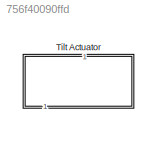
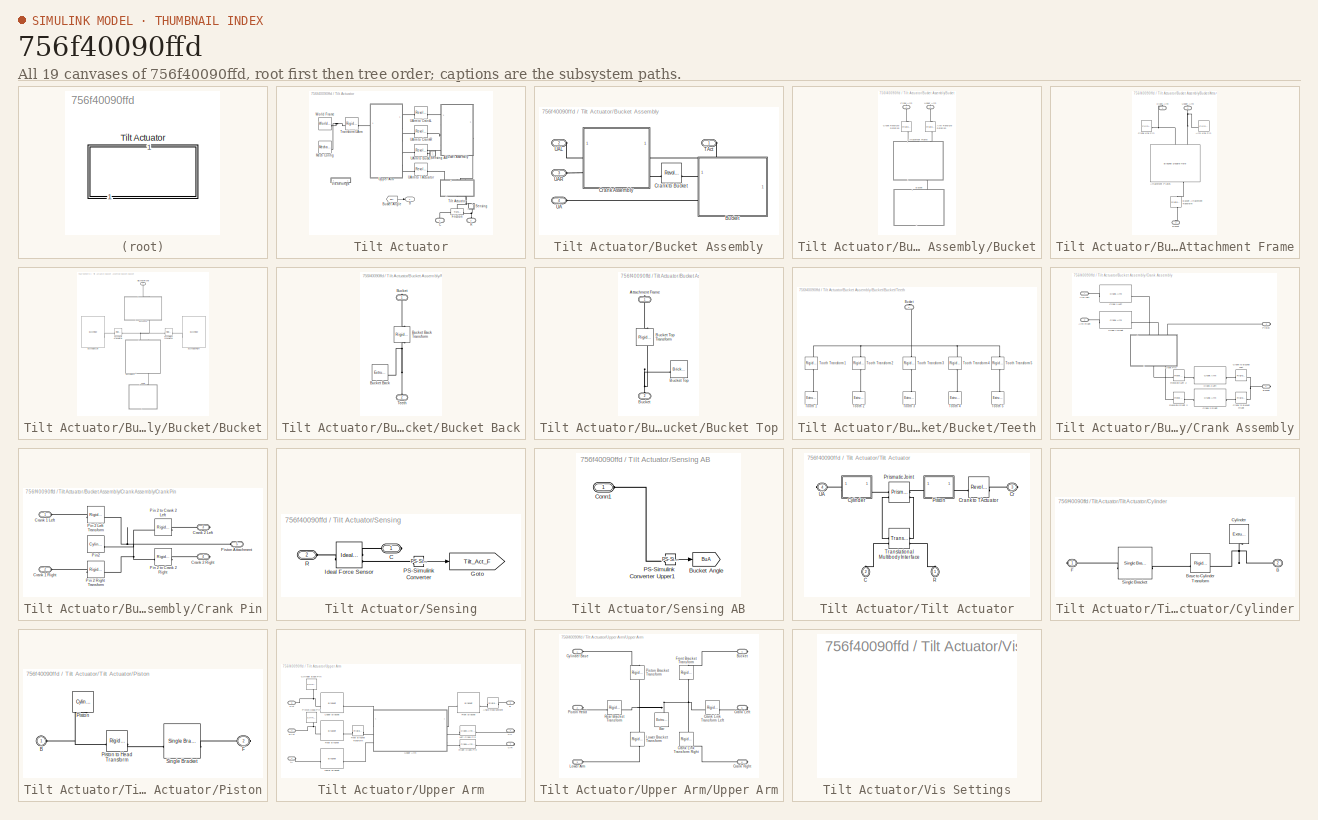
[diagram: thumbnail index - all 19 canvases of the model, root first then tree order]
MODEL slx_756f40090ffd
KIND library
CONFIG EnableMultiTasking = on
CONFIG SolverName = ode45
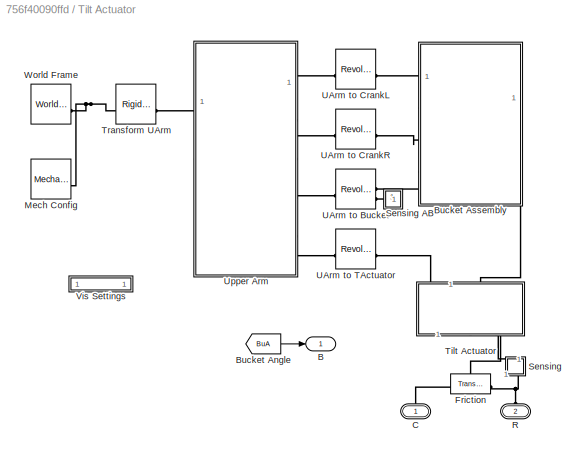
BLOCK [SubSystem] Tilt Actuator
  NameLocation = right
BLOCK [Outport] Tilt Actuator/B
  VectorParamsAs1DForOutWhenUnconnected = off
BLOCK [From] Tilt Actuator/Bucket Angle
  GotoTag = BuA
  TagVisibility = global
BLOCK [SubSystem] Tilt Actuator/Bucket Assembly
BLOCK [SubSystem] Tilt Actuator/Bucket Assembly/Bucket
BLOCK [Reference] Tilt Actuator/Bucket Assembly/Bucket/Arm Revolute Rotation  REF=sm_lib/Frames and
Transforms/Rigid
Transform
  NameLocation = right
  SourceBlock = sm_lib/Frames and\nTransforms/Rigid\nTransform
  SourceType = Rigid\nTransform
BLOCK [SubSystem] Tilt Actuator/Bucket Assembly/Bucket/Attachment Frame
  NameLocation = right
BLOCK [Reference] Tilt Actuator/Bucket Assembly/Bucket/Attachment Frame/Arm Link Pin  REF=sm_lib/Body Elements/Cylindrical Solid
  SourceBlock = sm_lib/Body Elements/Cylindrical Solid
  SourceType = Cylindrical Solid
BLOCK [Reference] Tilt Actuator/Bucket Assembly/Bucket/Attachment Frame/Attachment Plates  REF=Backhoe_Lib/Bracket Double Hole
  LibrarySourceBlock = Backhoe_Lib_converted_converted/Bracket Double Hole
  NameLocation = right
  SourceBlock = Backhoe_Lib/Bracket Double Hole
  SourceType = Bracket Double Hole
BLOCK [PMIOPort] Tilt Actuator/Bucket Assembly/Bucket/Attachment Frame/Bucket
  NameLocation = left
  Port = 3
  Side = Left
BLOCK [Reference] Tilt Actuator/Bucket Assembly/Bucket/Attachment Frame/Bucket Attachment Transform  REF=sm_lib/Frames and
Transforms/Rigid
Transform
  NameLocation = right
  SourceBlock = sm_lib/Frames and\nTransforms/Rigid\nTransform
  SourceType = Rigid\nTransform
BLOCK [PMIOPort] Tilt Actuator/Bucket Assembly/Bucket/Attachment Frame/Crank Arm
  NameLocation = left
  Side = Right
BLOCK [Reference] Tilt Actuator/Bucket Assembly/Bucket/Attachment Frame/Crank Link Pin  REF=sm_lib/Body Elements/Cylindrical Solid
  SourceBlock = sm_lib/Body Elements/Cylindrical Solid
  SourceType = Cylindrical Solid
BLOCK [PMIOPort] Tilt Actuator/Bucket Assembly/Bucket/Attachment Frame/Upper Arm
  NameLocation = right
  Port = 2
  Side = Right
BLOCK [SubSystem] Tilt Actuator/Bucket Assembly/Bucket/Bucket
  NameLocation = right
BLOCK [PMIOPort] Tilt Actuator/Bucket Assembly/Bucket/Bucket/Attachment Frame
  NameLocation = right
  Side = Right
BLOCK [SubSystem] Tilt Actuator/Bucket Assembly/Bucket/Bucket/Bucket Back
  NameLocation = right
BLOCK [PMIOPort] Tilt Actuator/Bucket Assembly/Bucket/Bucket/Bucket Back/Bucket
  NameLocation = right
  Side = Right
BLOCK [Reference] Tilt Actuator/Bucket Assembly/Bucket/Bucket/Bucket Back/Bucket Back  REF=sm_lib/Body Elements/Extruded Solid
  NameLocation = top
  SourceBlock = sm_lib/Body Elements/Extruded Solid
  SourceType = Extruded Solid
BLOCK [Reference] Tilt Actuator/Bucket Assembly/Bucket/Bucket/Bucket Back/Bucket Back Transform  REF=sm_lib/Frames and
Transforms/Rigid
Transform
  NameLocation = left
  SourceBlock = sm_lib/Frames and\nTransforms/Rigid\nTransform
  SourceType = Rigid\nTransform
BLOCK [PMIOPort] Tilt Actuator/Bucket Assembly/Bucket/Bucket/Bucket Back/Teeth
  NameLocation = right
  Port = 2
  Side = Left
BLOCK [Reference] Tilt Actuator/Bucket Assembly/Bucket/Bucket/Bucket Left Transform  REF=sm_lib/Frames and
Transforms/Rigid
Transform
  NameLocation = top
  SourceBlock = sm_lib/Frames and\nTransforms/Rigid\nTransform
  SourceType = Rigid\nTransform
BLOCK [Reference] Tilt Actuator/Bucket Assembly/Bucket/Bucket/Bucket Right Transform  REF=sm_lib/Frames and
Transforms/Rigid
Transform
  NameLocation = top
  SourceBlock = sm_lib/Frames and\nTransforms/Rigid\nTransform
  SourceType = Rigid\nTransform
BLOCK [Reference] Tilt Actuator/Bucket Assembly/Bucket/Bucket/Bucket Side Left  REF=Backhoe_Lib/Bucket Side
  LibrarySourceBlock = Backhoe_Lib_converted_converted/Bucket Side
  SourceBlock = Backhoe_Lib/Bucket Side
  SourceType = Bucket Side
BLOCK [Reference] Tilt Actuator/Bucket Assembly/Bucket/Bucket/Bucket SideRight  REF=Backhoe_Lib/Bucket Side
  LibrarySourceBlock = Backhoe_Lib_converted_converted/Bucket Side
  SourceBlock = Backhoe_Lib/Bucket Side
  SourceType = Bucket Side
BLOCK [SubSystem] Tilt Actuator/Bucket Assembly/Bucket/Bucket/Bucket Top
  NameLocation = right
BLOCK [PMIOPort] Tilt Actuator/Bucket Assembly/Bucket/Bucket/Bucket Top/Attachment Frame
  NameLocation = right
  Side = Right
BLOCK [PMIOPort] Tilt Actuator/Bucket Assembly/Bucket/Bucket/Bucket Top/Bucket
  NameLocation = right
  Port = 2
  Side = Left
BLOCK [Reference] Tilt Actuator/Bucket Assembly/Bucket/Bucket/Bucket Top/Bucket Top  REF=sm_lib/Body Elements/Brick Solid
  NameLocation = top
  SourceBlock = sm_lib/Body Elements/Brick Solid
  SourceType = Brick Solid
BLOCK [Reference] Tilt Actuator/Bucket Assembly/Bucket/Bucket/Bucket Top/Bucket Top Transform  REF=sm_lib/Frames and
Transforms/Rigid
Transform
  NameLocation = right
  SourceBlock = sm_lib/Frames and\nTransforms/Rigid\nTransform
  SourceType = Rigid\nTransform
BLOCK [SubSystem] Tilt Actuator/Bucket Assembly/Bucket/Bucket/Teeth
  NameLocation = right
BLOCK [PMIOPort] Tilt Actuator/Bucket Assembly/Bucket/Bucket/Teeth/Bucket
  NameLocation = right
  Side = Right
BLOCK [Reference] Tilt Actuator/Bucket Assembly/Bucket/Bucket/Teeth/Tooth 1  REF=sm_lib/Body Elements/Extruded Solid
  NameLocation = left
  SourceBlock = sm_lib/Body Elements/Extruded Solid
  SourceType = Extruded Solid
BLOCK [Reference] Tilt Actuator/Bucket Assembly/Bucket/Bucket/Teeth/Tooth 2  REF=sm_lib/Body Elements/Extruded Solid
  NameLocation = left
  SourceBlock = sm_lib/Body Elements/Extruded Solid
  SourceType = Extruded Solid
BLOCK [Reference] Tilt Actuator/Bucket Assembly/Bucket/Bucket/Teeth/Tooth 3  REF=sm_lib/Body Elements/Extruded Solid
  NameLocation = left
  SourceBlock = sm_lib/Body Elements/Extruded Solid
  SourceType = Extruded Solid
BLOCK [Reference] Tilt Actuator/Bucket Assembly/Bucket/Bucket/Teeth/Tooth 4  REF=sm_lib/Body Elements/Extruded Solid
  NameLocation = left
  SourceBlock = sm_lib/Body Elements/Extruded Solid
  SourceType = Extruded Solid
BLOCK [Reference] Tilt Actuator/Bucket Assembly/Bucket/Bucket/Teeth/Tooth 5  REF=sm_lib/Body Elements/Extruded Solid
  NameLocation = left
  SourceBlock = sm_lib/Body Elements/Extruded Solid
  SourceType = Extruded Solid
BLOCK [Reference] Tilt Actuator/Bucket Assembly/Bucket/Bucket/Teeth/Tooth Transform 1  REF=sm_lib/Frames and
Transforms/Rigid
Transform
  NameLocation = left
  SourceBlock = sm_lib/Frames and\nTransforms/Rigid\nTransform
  SourceType = Rigid\nTransform
BLOCK [Reference] Tilt Actuator/Bucket Assembly/Bucket/Bucket/Teeth/Tooth Transform 2  REF=sm_lib/Frames and
Transforms/Rigid
Transform
  NameLocation = left
  SourceBlock = sm_lib/Frames and\nTransforms/Rigid\nTransform
  SourceType = Rigid\nTransform
BLOCK [Reference] Tilt Actuator/Bucket Assembly/Bucket/Bucket/Teeth/Tooth Transform 3  REF=sm_lib/Frames and
Transforms/Rigid
Transform
  NameLocation = left
  SourceBlock = sm_lib/Frames and\nTransforms/Rigid\nTransform
  SourceType = Rigid\nTransform
BLOCK [Reference] Tilt Actuator/Bucket Assembly/Bucket/Bucket/Teeth/Tooth Transform 4  REF=sm_lib/Frames and
Transforms/Rigid
Transform
  NameLocation = left
  SourceBlock = sm_lib/Frames and\nTransforms/Rigid\nTransform
  SourceType = Rigid\nTransform
BLOCK [Reference] Tilt Actuator/Bucket Assembly/Bucket/Bucket/Teeth/Tooth Transform 5  REF=sm_lib/Frames and
Transforms/Rigid
Transform
  NameLocation = left
  SourceBlock = sm_lib/Frames and\nTransforms/Rigid\nTransform
  SourceType = Rigid\nTransform
BLOCK [PMIOPort] Tilt Actuator/Bucket Assembly/Bucket/Crank Arm
  NameLocation = left
  Side = Right
BLOCK [Reference] Tilt Actuator/Bucket Assembly/Bucket/Crank Revolute Rotation  REF=sm_lib/Frames and
Transforms/Rigid
Transform
  NameLocation = left
  SourceBlock = sm_lib/Frames and\nTransforms/Rigid\nTransform
  SourceType = Rigid\nTransform
BLOCK [PMIOPort] Tilt Actuator/Bucket Assembly/Bucket/Upper Arm
  NameLocation = right
  Port = 2
  Side = Right
BLOCK [SubSystem] Tilt Actuator/Bucket Assembly/Crank Assembly
BLOCK [PMIOPort] Tilt Actuator/Bucket Assembly/Crank Assembly/Arm Left
  Side = Left
BLOCK [PMIOPort] Tilt Actuator/Bucket Assembly/Crank Assembly/Arm Right
  NameLocation = top
  Port = 2
  Side = Left
BLOCK [PMIOPort] Tilt Actuator/Bucket Assembly/Crank Assembly/Bucket
  Port = 4
  Side = Right
BLOCK [Reference] Tilt Actuator/Bucket Assembly/Crank Assembly/Crank 1 Left  REF=Backhoe_Lib/Crank Arm
  LibrarySourceBlock = Backhoe_Lib_converted_converted/Crank Arm
  NameLocation = top
  SourceBlock = Backhoe_Lib/Crank Arm
  SourceType = Crank Arm
BLOCK [Reference] Tilt Actuator/Bucket Assembly/Crank Assembly/Crank 1 Right  REF=Backhoe_Lib/Crank Arm
  LibrarySourceBlock = Backhoe_Lib_converted_converted/Crank Arm
  SourceBlock = Backhoe_Lib/Crank Arm
  SourceType = Crank Arm
BLOCK [Reference] Tilt Actuator/Bucket Assembly/Crank Assembly/Crank 2 Left  REF=Backhoe_Lib/Crank Arm
  LibrarySourceBlock = Backhoe_Lib_converted_converted/Crank Arm
  NameLocation = top
  SourceBlock = Backhoe_Lib/Crank Arm
  SourceType = Crank Arm
BLOCK [Reference] Tilt Actuator/Bucket Assembly/Crank Assembly/Crank 2 Right  REF=Backhoe_Lib/Crank Arm
  LibrarySourceBlock = Backhoe_Lib_converted_converted/Crank Arm
  SourceBlock = Backhoe_Lib/Crank Arm
  SourceType = Crank Arm
BLOCK [SubSystem] Tilt Actuator/Bucket Assembly/Crank Assembly/Crank Pin
  NameLocation = right
BLOCK [PMIOPort] Tilt Actuator/Bucket Assembly/Crank Assembly/Crank Pin/Crank 1 Left
  NameLocation = top
  Side = Left
BLOCK [PMIOPort] Tilt Actuator/Bucket Assembly/Crank Assembly/Crank Pin/Crank 1 Right
  NameLocation = top
  Port = 2
  Side = Left
BLOCK [PMIOPort] Tilt Actuator/Bucket Assembly/Crank Assembly/Crank Pin/Crank 2 Left
  Port = 3
  Side = Right
BLOCK [PMIOPort] Tilt Actuator/Bucket Assembly/Crank Assembly/Crank Pin/Crank 2 Right
  Port = 4
  Side = Right
BLOCK [Reference] Tilt Actuator/Bucket Assembly/Crank Assembly/Crank Pin/Pin 2 Left Transform  REF=sm_lib/Frames and
Transforms/Rigid
Transform
  NameLocation = top
  SourceBlock = sm_lib/Frames and\nTransforms/Rigid\nTransform
  SourceType = Rigid\nTransform
BLOCK [Reference] Tilt Actuator/Bucket Assembly/Crank Assembly/Crank Pin/Pin 2 Right Transform  REF=sm_lib/Frames and
Transforms/Rigid
Transform
  SourceBlock = sm_lib/Frames and\nTransforms/Rigid\nTransform
  SourceType = Rigid\nTransform
BLOCK [Reference] Tilt Actuator/Bucket Assembly/Crank Assembly/Crank Pin/Pin 2 to Crank 2 Left  REF=sm_lib/Frames and
Transforms/Rigid
Transform
  NameLocation = top
  SourceBlock = sm_lib/Frames and\nTransforms/Rigid\nTransform
  SourceType = Rigid\nTransform
BLOCK [Reference] Tilt Actuator/Bucket Assembly/Crank Assembly/Crank Pin/Pin 2 to Crank 2 Right  REF=sm_lib/Frames and
Transforms/Rigid
Transform
  SourceBlock = sm_lib/Frames and\nTransforms/Rigid\nTransform
  SourceType = Rigid\nTransform
BLOCK [Reference] Tilt Actuator/Bucket Assembly/Crank Assembly/Crank Pin/Pin2  REF=sm_lib/Body Elements/Cylindrical Solid
  NameLocation = top
  SourceBlock = sm_lib/Body Elements/Cylindrical Solid
  SourceType = Cylindrical Solid
BLOCK [PMIOPort] Tilt Actuator/Bucket Assembly/Crank Assembly/Crank Pin/Piston Attachment
  Port = 5
  Side = Left
BLOCK [Reference] Tilt Actuator/Bucket Assembly/Crank Assembly/Crank to Bucket Left  REF=sm_lib/Frames and
Transforms/Rigid
Transform
  NameLocation = top
  SourceBlock = sm_lib/Frames and\nTransforms/Rigid\nTransform
  SourceType = Rigid\nTransform
BLOCK [Reference] Tilt Actuator/Bucket Assembly/Crank Assembly/Crank to Bucket Right  REF=sm_lib/Frames and
Transforms/Rigid
Transform
  SourceBlock = sm_lib/Frames and\nTransforms/Rigid\nTransform
  SourceType = Rigid\nTransform
BLOCK [PMIOPort] Tilt Actuator/Bucket Assembly/Crank Assembly/Piston
  Port = 3
  Side = Right
BLOCK [Reference] Tilt Actuator/Bucket Assembly/Crank Assembly/Revolute Left 2  REF=sm_lib/Joints/Revolute Joint
  SourceBlock = sm_lib/Joints/Revolute Joint
  SourceType = Revolute Joint
BLOCK [Reference] Tilt Actuator/Bucket Assembly/Crank Assembly/Revolute Right 2  REF=sm_lib/Joints/Revolute Joint
  SourceBlock = sm_lib/Joints/Revolute Joint
  SourceType = Revolute Joint
BLOCK [Reference] Tilt Actuator/Bucket Assembly/Crank to Bucket  REF=sm_lib/Joints/Revolute Joint
  SourceBlock = sm_lib/Joints/Revolute Joint
  SourceType = Revolute Joint
BLOCK [PMIOPort] Tilt Actuator/Bucket Assembly/TAct
  NameLocation = top
  Side = Right
BLOCK [PMIOPort] Tilt Actuator/Bucket Assembly/UA
  Port = 4
  Side = Left
BLOCK [PMIOPort] Tilt Actuator/Bucket Assembly/UAL
  Port = 2
  Side = Left
BLOCK [PMIOPort] Tilt Actuator/Bucket Assembly/UAR
  Port = 3
  Side = Left
BLOCK [PMIOPort] Tilt Actuator/C
  NameLocation = left
  Side = Left
BLOCK [Reference] Tilt Actuator/Friction  REF=fl_lib/Mechanical/Translational
Elements/Translational
Friction
  SourceBlock = fl_lib/Mechanical/Translational\nElements/Translational\nFriction
  SourceType = Translational\nFriction
BLOCK [Reference] Tilt Actuator/Mech Config  REF=sm_lib/Utilities/Mechanism
Configuration
  SourceBlock = sm_lib/Utilities/Mechanism\nConfiguration
  SourceType = Mechanism\nConfiguration
BLOCK [PMIOPort] Tilt Actuator/R
  NameLocation = right
  Port = 2
  Side = Left
BLOCK [SubSystem] Tilt Actuator/Sensing
  NameLocation = right
BLOCK [SubSystem] Tilt Actuator/Sensing AB
BLOCK [Goto] Tilt Actuator/Sensing AB/Bucket Angle
  GotoTag = BuA
  TagVisibility = global
BLOCK [PMIOPort] Tilt Actuator/Sensing AB/Conn1
  Side = Left
BLOCK [Reference] Tilt Actuator/Sensing AB/PS-Simulink Converter Upper1  REF=nesl_utility/PS-Simulink
Converter
  SourceBlock = nesl_utility/PS-Simulink\nConverter
  SourceType = PS-Simulink\nConverter
BLOCK [PMIOPort] Tilt Actuator/Sensing/C
  Side = Right
BLOCK [Goto] Tilt Actuator/Sensing/Goto
  GotoTag = Tilt_Act_F
  TagVisibility = global
BLOCK [Reference] Tilt Actuator/Sensing/Ideal Force Sensor  REF=fl_lib/Mechanical/Mechanical Sensors/Ideal Force Sensor
  SourceBlock = fl_lib/Mechanical/Mechanical Sensors/Ideal Force Sensor
  SourceType = Ideal Force Sensor
BLOCK [Reference] Tilt Actuator/Sensing/PS-Simulink Converter  REF=nesl_utility/PS-Simulink
Converter
  SourceBlock = nesl_utility/PS-Simulink\nConverter
  SourceType = PS-Simulink\nConverter
BLOCK [PMIOPort] Tilt Actuator/Sensing/R
  Port = 2
  Side = Left
BLOCK [SubSystem] Tilt Actuator/Tilt Actuator
  NameLocation = left
BLOCK [PMIOPort] Tilt Actuator/Tilt Actuator/C
  NameLocation = left
  Port = 2
  Side = Left
BLOCK [PMIOPort] Tilt Actuator/Tilt Actuator/Cr
  Port = 3
  Side = Right
BLOCK [Reference] Tilt Actuator/Tilt Actuator/Crank to TActuator  REF=sm_lib/Joints/Revolute Joint
  SourceBlock = sm_lib/Joints/Revolute Joint
  SourceType = Revolute Joint
BLOCK [SubSystem] Tilt Actuator/Tilt Actuator/Cylinder
BLOCK [PMIOPort] Tilt Actuator/Tilt Actuator/Cylinder/B
  NameLocation = top
  Port = 2
  Side = Left
BLOCK [Reference] Tilt Actuator/Tilt Actuator/Cylinder/Base to Cylinder Transform  REF=sm_lib/Frames and
Transforms/Rigid
Transform
  SourceBlock = sm_lib/Frames and\nTransforms/Rigid\nTransform
  SourceType = Rigid\nTransform
BLOCK [Reference] Tilt Actuator/Tilt Actuator/Cylinder/Cylinder  REF=sm_lib/Body Elements/Extruded Solid
  NameLocation = left
  SourceBlock = sm_lib/Body Elements/Extruded Solid
  SourceType = Extruded Solid
BLOCK [PMIOPort] Tilt Actuator/Tilt Actuator/Cylinder/F
  NameLocation = top
  Side = Right
BLOCK [Reference] Tilt Actuator/Tilt Actuator/Cylinder/Single Bracket  REF=Backhoe_Lib/Single Bracket
  LibrarySourceBlock = Backhoe_Lib_converted_converted/Single Bracket
  NameLocation = top
  SourceBlock = Backhoe_Lib/Single Bracket
  SourceType = Single Bracket
BLOCK [SubSystem] Tilt Actuator/Tilt Actuator/Piston
BLOCK [PMIOPort] Tilt Actuator/Tilt Actuator/Piston/B
  NameLocation = top
  Side = Left
BLOCK [PMIOPort] Tilt Actuator/Tilt Actuator/Piston/F
  NameLocation = top
  Port = 2
  Side = Right
BLOCK [Reference] Tilt Actuator/Tilt Actuator/Piston/Piston  REF=sm_lib/Body Elements/Cylindrical Solid
  NameLocation = left
  SourceBlock = sm_lib/Body Elements/Cylindrical Solid
  SourceType = Cylindrical Solid
BLOCK [Reference] Tilt Actuator/Tilt Actuator/Piston/Piston to Head Transform  REF=sm_lib/Frames and
Transforms/Rigid
Transform
  SourceBlock = sm_lib/Frames and\nTransforms/Rigid\nTransform
  SourceType = Rigid\nTransform
BLOCK [Reference] Tilt Actuator/Tilt Actuator/Piston/Single Bracket  REF=Backhoe_Lib/Single Bracket
  LibrarySourceBlock = Backhoe_Lib_converted_converted/Single Bracket
  SourceBlock = Backhoe_Lib/Single Bracket
  SourceType = Single Bracket
BLOCK [Reference] Tilt Actuator/Tilt Actuator/Prismatic  Joint  REF=sm_lib/Joints/Prismatic
Joint
  SourceBlock = sm_lib/Joints/Prismatic\nJoint
  SourceType = Prismatic\nJoint
BLOCK [PMIOPort] Tilt Actuator/Tilt Actuator/R
  NameLocation = left
  Side = Left
BLOCK [Reference] Tilt Actuator/Tilt Actuator/Translational Multibody Interface  REF=fl_lib/Mechanical/Multibody Interfaces/Translational
Multibody Interface
  SourceBlock = fl_lib/Mechanical/Multibody Interfaces/Translational\nMultibody Interface
  SourceType = Translational\nMultibody Interface
BLOCK [PMIOPort] Tilt Actuator/Tilt Actuator/UA
  NameLocation = top
  Port = 4
  Side = Right
BLOCK [Reference] Tilt Actuator/Transform UArm  REF=sm_lib/Frames and
Transforms/Rigid
Transform
  SourceBlock = sm_lib/Frames and\nTransforms/Rigid\nTransform
  SourceType = Rigid\nTransform
BLOCK [Reference] Tilt Actuator/UArm to Bucket  REF=sm_lib/Joints/Revolute Joint
  SourceBlock = sm_lib/Joints/Revolute Joint
  SourceType = Revolute Joint
BLOCK [Reference] Tilt Actuator/UArm to CrankL  REF=sm_lib/Joints/Revolute Joint
  SourceBlock = sm_lib/Joints/Revolute Joint
  SourceType = Revolute Joint
BLOCK [Reference] Tilt Actuator/UArm to CrankR  REF=sm_lib/Joints/Revolute Joint
  SourceBlock = sm_lib/Joints/Revolute Joint
  SourceType = Revolute Joint
BLOCK [Reference] Tilt Actuator/UArm to TActuator  REF=sm_lib/Joints/Revolute Joint
  SourceBlock = sm_lib/Joints/Revolute Joint
  SourceType = Revolute Joint
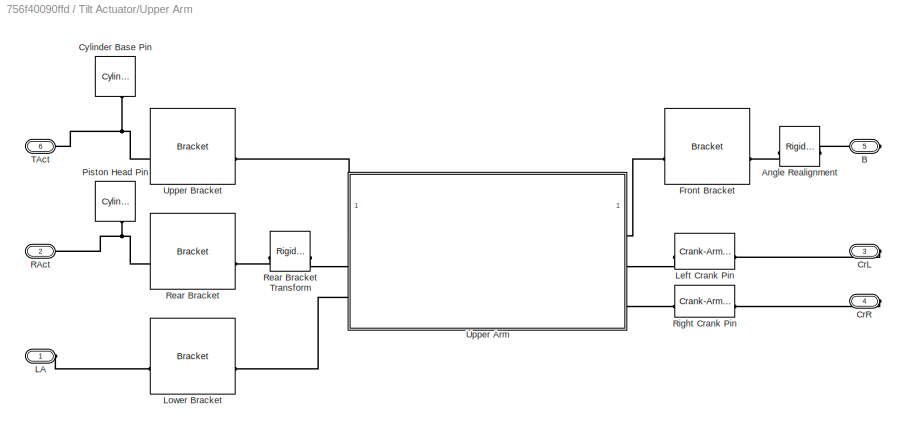
BLOCK [SubSystem] Tilt Actuator/Upper Arm
BLOCK [Reference] Tilt Actuator/Upper Arm/Angle Realignment  REF=sm_lib/Frames and
Transforms/Rigid
Transform
  NameLocation = top
  SourceBlock = sm_lib/Frames and\nTransforms/Rigid\nTransform
  SourceType = Rigid\nTransform
BLOCK [PMIOPort] Tilt Actuator/Upper Arm/B
  Port = 5
  Side = Right
BLOCK [PMIOPort] Tilt Actuator/Upper Arm/CrL
  Port = 3
  Side = Right
BLOCK [PMIOPort] Tilt Actuator/Upper Arm/CrR
  Port = 4
  Side = Right
BLOCK [Reference] Tilt Actuator/Upper Arm/Cylinder Base Pin  REF=sm_lib/Body Elements/Cylindrical Solid
  NameLocation = left
  SourceBlock = sm_lib/Body Elements/Cylindrical Solid
  SourceType = Cylindrical Solid
BLOCK [Reference] Tilt Actuator/Upper Arm/Front Bracket  REF=Backhoe_Lib/Bracket
  LibrarySourceBlock = Backhoe_Lib_converted_converted/Bracket
  NameLocation = top
  SourceBlock = Backhoe_Lib/Bracket
  SourceType = Bracket
BLOCK [PMIOPort] Tilt Actuator/Upper Arm/LA
  Side = Left
BLOCK [Reference] Tilt Actuator/Upper Arm/Left Crank Pin  REF=Backhoe_Lib/Crank-Arm Pin
  LibrarySourceBlock = Backhoe_Lib_converted_converted/Crank-Arm Pin
  NameLocation = top
  SourceBlock = Backhoe_Lib/Crank-Arm Pin
  SourceType = Crank Pin
BLOCK [Reference] Tilt Actuator/Upper Arm/Lower Bracket  REF=Backhoe_Lib/Bracket
  LibrarySourceBlock = Backhoe_Lib_converted_converted/Bracket
  SourceBlock = Backhoe_Lib/Bracket
  SourceType = Bracket
BLOCK [Reference] Tilt Actuator/Upper Arm/Piston Head Pin  REF=sm_lib/Body Elements/Cylindrical Solid
  NameLocation = left
  SourceBlock = sm_lib/Body Elements/Cylindrical Solid
  SourceType = Cylindrical Solid
BLOCK [PMIOPort] Tilt Actuator/Upper Arm/RAct
  Port = 2
  Side = Left
BLOCK [Reference] Tilt Actuator/Upper Arm/Rear Bracket  REF=Backhoe_Lib/Bracket
  LibrarySourceBlock = Backhoe_Lib_converted_converted/Bracket
  SourceBlock = Backhoe_Lib/Bracket
  SourceType = Bracket
BLOCK [Reference] Tilt Actuator/Upper Arm/Rear Bracket Transform  REF=sm_lib/Frames and
Transforms/Rigid
Transform
  SourceBlock = sm_lib/Frames and\nTransforms/Rigid\nTransform
  SourceType = Rigid\nTransform
BLOCK [Reference] Tilt Actuator/Upper Arm/Right Crank Pin  REF=Backhoe_Lib/Crank-Arm Pin
  LibrarySourceBlock = Backhoe_Lib_converted_converted/Crank-Arm Pin
  SourceBlock = Backhoe_Lib/Crank-Arm Pin
  SourceType = Crank Pin
BLOCK [PMIOPort] Tilt Actuator/Upper Arm/TAct
  Port = 6
  Side = Right
BLOCK [SubSystem] Tilt Actuator/Upper Arm/Upper Arm
BLOCK [Reference] Tilt Actuator/Upper Arm/Upper Arm/Bar  REF=sm_lib/Body Elements/Extruded Solid
  NameLocation = right
  SourceBlock = sm_lib/Body Elements/Extruded Solid
  SourceType = Extruded Solid
BLOCK [PMIOPort] Tilt Actuator/Upper Arm/Upper Arm/Bucket
  Port = 4
  Side = Right
BLOCK [PMIOPort] Tilt Actuator/Upper Arm/Upper Arm/Crank Left
  NameLocation = top
  Port = 5
  Side = Right
BLOCK [Reference] Tilt Actuator/Upper Arm/Upper Arm/Crank Link Transform Left  REF=sm_lib/Frames and
Transforms/Rigid
Transform
  SourceBlock = sm_lib/Frames and\nTransforms/Rigid\nTransform
  SourceType = Rigid\nTransform
BLOCK [Reference] Tilt Actuator/Upper Arm/Upper Arm/Crank Link Transform Right  REF=sm_lib/Frames and
Transforms/Rigid
Transform
  NameLocation = right
  SourceBlock = sm_lib/Frames and\nTransforms/Rigid\nTransform
  SourceType = Rigid\nTransform
BLOCK [PMIOPort] Tilt Actuator/Upper Arm/Upper Arm/Crank Right
  Port = 6
  Side = Right
BLOCK [PMIOPort] Tilt Actuator/Upper Arm/Upper Arm/Cylinder Base
  NameLocation = top
  Side = Left
BLOCK [Reference] Tilt Actuator/Upper Arm/Upper Arm/Front Bracket Transform  REF=sm_lib/Frames and
Transforms/Rigid
Transform
  NameLocation = right
  SourceBlock = sm_lib/Frames and\nTransforms/Rigid\nTransform
  SourceType = Rigid\nTransform
BLOCK [PMIOPort] Tilt Actuator/Upper Arm/Upper Arm/Lower Arm
  NameLocation = top
  Port = 3
  Side = Left
BLOCK [Reference] Tilt Actuator/Upper Arm/Upper Arm/Lower Bracket Transform  REF=sm_lib/Frames and
Transforms/Rigid
Transform
  NameLocation = left
  SourceBlock = sm_lib/Frames and\nTransforms/Rigid\nTransform
  SourceType = Rigid\nTransform
BLOCK [Reference] Tilt Actuator/Upper Arm/Upper Arm/Piston Bracket Transform  REF=sm_lib/Frames and
Transforms/Rigid
Transform
  NameLocation = left
  SourceBlock = sm_lib/Frames and\nTransforms/Rigid\nTransform
  SourceType = Rigid\nTransform
BLOCK [PMIOPort] Tilt Actuator/Upper Arm/Upper Arm/Piston Head
  NameLocation = top
  Port = 2
  Side = Left
BLOCK [Reference] Tilt Actuator/Upper Arm/Upper Arm/Rear Bracket Transform  REF=sm_lib/Frames and
Transforms/Rigid
Transform
  NameLocation = top
  SourceBlock = sm_lib/Frames and\nTransforms/Rigid\nTransform
  SourceType = Rigid\nTransform
BLOCK [Reference] Tilt Actuator/Upper Arm/Upper Bracket  REF=Backhoe_Lib/Bracket
  LibrarySourceBlock = Backhoe_Lib_converted_converted/Bracket
  NameLocation = top
  SourceBlock = Backhoe_Lib/Bracket
  SourceType = Bracket
BLOCK [SubSystem] Tilt Actuator/Vis Settings
  InitFcn = %set_param(bdroot,'InternalSimMechanicsExplorerSettings','<ExplorerConfiguration><canonicalview>default</canonicalview><TilePanel><TileInfo><Tiles Columns="1" Count="1" Rows="1"><Column Left="2" Weight="1"/><Column Left="603"/><Row Top="2" Weight="1"/><Row Top="639"/><Tile Height="1" Width="1" X="0" Y="0"/></Tiles></TileInfo><SceneInfo><SceneViewer><BGColor><R>0.60000002384185791</R><G>0.600000023...<+1656ch>
BLOCK [Reference] Tilt Actuator/World Frame  REF=sm_lib/Frames and
Transforms/World Frame
  SourceBlock = sm_lib/Frames and\nTransforms/World Frame
  SourceType = World Frame
LINE Tilt Actuator/Bucket Angle:1 -> Tilt Actuator/B:1
LINE Tilt Actuator/Sensing AB/PS-Simulink Converter Upper1:1 -> Tilt Actuator/Sensing AB/Bucket Angle:1
LINE Tilt Actuator/Sensing/PS-Simulink Converter:1 -> Tilt Actuator/Sensing/Goto:1
PLINE Tilt Actuator/Bucket Assembly/Bucket/Arm Revolute Rotation:LConn1 -- Tilt Actuator/Bucket Assembly/Bucket/Attachment Frame:RConn2
PLINE Tilt Actuator/Bucket Assembly/Bucket/Arm Revolute Rotation:RConn1 -- Tilt Actuator/Bucket Assembly/Bucket/Upper Arm:RConn1
PNET net1: Tilt Actuator/Bucket Assembly/Bucket/Attachment Frame/Arm Link Pin:RConn1 -- Tilt Actuator/Bucket Assembly/Bucket/Attachment Frame/Attachment Plates:RConn2 -- Tilt Actuator/Bucket Assembly/Bucket/Attachment Frame/Upper Arm:RConn1
PLINE Tilt Actuator/Bucket Assembly/Bucket/Attachment Frame/Attachment Plates:LConn1 -- Tilt Actuator/Bucket Assembly/Bucket/Attachment Frame/Bucket Attachment Transform:LConn1
PNET net2: Tilt Actuator/Bucket Assembly/Bucket/Attachment Frame/Attachment Plates:RConn1 -- Tilt Actuator/Bucket Assembly/Bucket/Attachment Frame/Crank Arm:RConn1 -- Tilt Actuator/Bucket Assembly/Bucket/Attachment Frame/Crank Link Pin:RConn1
PLINE Tilt Actuator/Bucket Assembly/Bucket/Attachment Frame/Bucket Attachment Transform:RConn1 -- Tilt Actuator/Bucket Assembly/Bucket/Attachment Frame/Bucket:RConn1
PLINE Tilt Actuator/Bucket Assembly/Bucket/Attachment Frame:LConn1 -- Tilt Actuator/Bucket Assembly/Bucket/Bucket:RConn1
PLINE Tilt Actuator/Bucket Assembly/Bucket/Attachment Frame:RConn1 -- Tilt Actuator/Bucket Assembly/Bucket/Crank Revolute Rotation:LConn1
PLINE Tilt Actuator/Bucket Assembly/Bucket/Bucket/Attachment Frame:RConn1 -- Tilt Actuator/Bucket Assembly/Bucket/Bucket/Bucket Top:RConn1
PLINE Tilt Actuator/Bucket Assembly/Bucket/Bucket/Bucket Back/Bucket Back Transform:LConn1 -- Tilt Actuator/Bucket Assembly/Bucket/Bucket/Bucket Back/Bucket:RConn1
PNET net3: Tilt Actuator/Bucket Assembly/Bucket/Bucket/Bucket Back/Bucket Back Transform:RConn1 -- Tilt Actuator/Bucket Assembly/Bucket/Bucket/Bucket Back/Bucket Back:RConn1 -- Tilt Actuator/Bucket Assembly/Bucket/Bucket/Bucket Back/Teeth:RConn1
PLINE Tilt Actuator/Bucket Assembly/Bucket/Bucket/Bucket Back:LConn1 -- Tilt Actuator/Bucket Assembly/Bucket/Bucket/Teeth:RConn1
PNET net4: Tilt Actuator/Bucket Assembly/Bucket/Bucket/Bucket Back:RConn1 -- Tilt Actuator/Bucket Assembly/Bucket/Bucket/Bucket Left Transform:LConn1 -- Tilt Actuator/Bucket Assembly/Bucket/Bucket/Bucket Right Transform:LConn1 -- Tilt Actuator/Bucket Assembly/Bucket/Bucket/Bucket Top:LConn1
PLINE Tilt Actuator/Bucket Assembly/Bucket/Bucket/Bucket Left Transform:RConn1 -- Tilt Actuator/Bucket Assembly/Bucket/Bucket/Bucket Side Left:RConn1
PLINE Tilt Actuator/Bucket Assembly/Bucket/Bucket/Bucket Right Transform:RConn1 -- Tilt Actuator/Bucket Assembly/Bucket/Bucket/Bucket SideRight:RConn1
PLINE Tilt Actuator/Bucket Assembly/Bucket/Bucket/Bucket Top/Attachment Frame:RConn1 -- Tilt Actuator/Bucket Assembly/Bucket/Bucket/Bucket Top/Bucket Top Transform:LConn1
PNET net5: Tilt Actuator/Bucket Assembly/Bucket/Bucket/Bucket Top/Bucket Top Transform:RConn1 -- Tilt Actuator/Bucket Assembly/Bucket/Bucket/Bucket Top/Bucket Top:RConn1 -- Tilt Actuator/Bucket Assembly/Bucket/Bucket/Bucket Top/Bucket:RConn1
PNET net6: Tilt Actuator/Bucket Assembly/Bucket/Bucket/Teeth/Bucket:RConn1 -- Tilt Actuator/Bucket Assembly/Bucket/Bucket/Teeth/Tooth Transform 1:LConn1 -- Tilt Actuator/Bucket Assembly/Bucket/Bucket/Teeth/Tooth Transform 2:LConn1 -- Tilt Actuator/Bucket Assembly/Bucket/Bucket/Teeth/Tooth Transform 3:LConn1 -- Tilt Actuator/Bucket Assembly/Bucket/Bucket/Teeth/Tooth Transform 4:LConn1 -- Tilt Actuator/Bucket Assembly/Bucket/Bucket/Teeth/Tooth Transform 5:LConn1
PLINE Tilt Actuator/Bucket Assembly/Bucket/Bucket/Teeth/Tooth 1:RConn1 -- Tilt Actuator/Bucket Assembly/Bucket/Bucket/Teeth/Tooth Transform 1:RConn1
PLINE Tilt Actuator/Bucket Assembly/Bucket/Bucket/Teeth/Tooth 2:RConn1 -- Tilt Actuator/Bucket Assembly/Bucket/Bucket/Teeth/Tooth Transform 2:RConn1
PLINE Tilt Actuator/Bucket Assembly/Bucket/Bucket/Teeth/Tooth 3:RConn1 -- Tilt Actuator/Bucket Assembly/Bucket/Bucket/Teeth/Tooth Transform 3:RConn1
PLINE Tilt Actuator/Bucket Assembly/Bucket/Bucket/Teeth/Tooth 4:RConn1 -- Tilt Actuator/Bucket Assembly/Bucket/Bucket/Teeth/Tooth Transform 4:RConn1
PLINE Tilt Actuator/Bucket Assembly/Bucket/Bucket/Teeth/Tooth 5:RConn1 -- Tilt Actuator/Bucket Assembly/Bucket/Bucket/Teeth/Tooth Transform 5:RConn1
PLINE Tilt Actuator/Bucket Assembly/Bucket/Crank Arm:RConn1 -- Tilt Actuator/Bucket Assembly/Bucket/Crank Revolute Rotation:RConn1
PLINE Tilt Actuator/Bucket Assembly/Bucket:RConn1 -- Tilt Actuator/Bucket Assembly/Crank to Bucket:RConn1
PLINE Tilt Actuator/Bucket Assembly/Bucket:RConn2 -- Tilt Actuator/Bucket Assembly/UA:RConn1
PLINE Tilt Actuator/Bucket Assembly/Crank Assembly/Arm Left:RConn1 -- Tilt Actuator/Bucket Assembly/Crank Assembly/Crank 1 Left:RConn1
PLINE Tilt Actuator/Bucket Assembly/Crank Assembly/Arm Right:RConn1 -- Tilt Actuator/Bucket Assembly/Crank Assembly/Crank 1 Right:RConn1
PNET net7: Tilt Actuator/Bucket Assembly/Crank Assembly/Bucket:RConn1 -- Tilt Actuator/Bucket Assembly/Crank Assembly/Crank to Bucket Left:RConn1 -- Tilt Actuator/Bucket Assembly/Crank Assembly/Crank to Bucket Right:RConn1
PLINE Tilt Actuator/Bucket Assembly/Crank Assembly/Crank 1 Left:LConn1 -- Tilt Actuator/Bucket Assembly/Crank Assembly/Crank Pin:LConn1
PLINE Tilt Actuator/Bucket Assembly/Crank Assembly/Crank 1 Right:LConn1 -- Tilt Actuator/Bucket Assembly/Crank Assembly/Crank Pin:LConn2
PLINE Tilt Actuator/Bucket Assembly/Crank Assembly/Crank 2 Left:LConn1 -- Tilt Actuator/Bucket Assembly/Crank Assembly/Revolute Left 2:RConn1
PLINE Tilt Actuator/Bucket Assembly/Crank Assembly/Crank 2 Left:RConn1 -- Tilt Actuator/Bucket Assembly/Crank Assembly/Crank to Bucket Left:LConn1
PLINE Tilt Actuator/Bucket Assembly/Crank Assembly/Crank 2 Right:LConn1 -- Tilt Actuator/Bucket Assembly/Crank Assembly/Revolute Right 2:RConn1
PLINE Tilt Actuator/Bucket Assembly/Crank Assembly/Crank 2 Right:RConn1 -- Tilt Actuator/Bucket Assembly/Crank Assembly/Crank to Bucket Right:LConn1
PLINE Tilt Actuator/Bucket Assembly/Crank Assembly/Crank Pin/Crank 1 Left:RConn1 -- Tilt Actuator/Bucket Assembly/Crank Assembly/Crank Pin/Pin 2 Left Transform:RConn1
PLINE Tilt Actuator/Bucket Assembly/Crank Assembly/Crank Pin/Crank 1 Right:RConn1 -- Tilt Actuator/Bucket Assembly/Crank Assembly/Crank Pin/Pin 2 Right Transform:RConn1
PLINE Tilt Actuator/Bucket Assembly/Crank Assembly/Crank Pin/Crank 2 Left:RConn1 -- Tilt Actuator/Bucket Assembly/Crank Assembly/Crank Pin/Pin 2 to Crank 2 Left:RConn1
PLINE Tilt Actuator/Bucket Assembly/Crank Assembly/Crank Pin/Crank 2 Right:RConn1 -- Tilt Actuator/Bucket Assembly/Crank Assembly/Crank Pin/Pin 2 to Crank 2 Right:RConn1
PNET net8: Tilt Actuator/Bucket Assembly/Crank Assembly/Crank Pin/Pin 2 Left Transform:LConn1 -- Tilt Actuator/Bucket Assembly/Crank Assembly/Crank Pin/Pin 2 Right Transform:LConn1 -- Tilt Actuator/Bucket Assembly/Crank Assembly/Crank Pin/Pin 2 to Crank 2 Left:LConn1 -- Tilt Actuator/Bucket Assembly/Crank Assembly/Crank Pin/Pin 2 to Crank 2 Right:LConn1 -- Tilt Actuator/Bucket Assembly/Crank Assembly/Crank Pin/Pin2:RConn1 -- Tilt Actuator/Bucket Assembly/Crank Assembly/Crank Pin/Piston Attachment:RConn1
PLINE Tilt Actuator/Bucket Assembly/Crank Assembly/Crank Pin:LConn3 -- Tilt Actuator/Bucket Assembly/Crank Assembly/Piston:RConn1
PLINE Tilt Actuator/Bucket Assembly/Crank Assembly/Crank Pin:RConn1 -- Tilt Actuator/Bucket Assembly/Crank Assembly/Revolute Left 2:LConn1
PLINE Tilt Actuator/Bucket Assembly/Crank Assembly/Crank Pin:RConn2 -- Tilt Actuator/Bucket Assembly/Crank Assembly/Revolute Right 2:LConn1
PLINE Tilt Actuator/Bucket Assembly/Crank Assembly:LConn1 -- Tilt Actuator/Bucket Assembly/UAL:RConn1
PLINE Tilt Actuator/Bucket Assembly/Crank Assembly:LConn2 -- Tilt Actuator/Bucket Assembly/UAR:RConn1
PLINE Tilt Actuator/Bucket Assembly/Crank Assembly:RConn1 -- Tilt Actuator/Bucket Assembly/TAct:RConn1
PLINE Tilt Actuator/Bucket Assembly/Crank Assembly:RConn2 -- Tilt Actuator/Bucket Assembly/Crank to Bucket:LConn1
PLINE Tilt Actuator/Bucket Assembly:LConn1 -- Tilt Actuator/UArm to CrankL:RConn1
PLINE Tilt Actuator/Bucket Assembly:LConn2 -- Tilt Actuator/UArm to CrankR:RConn1
PLINE Tilt Actuator/Bucket Assembly:LConn3 -- Tilt Actuator/UArm to Bucket:RConn1
PLINE Tilt Actuator/Bucket Assembly:RConn1 -- Tilt Actuator/Tilt Actuator:RConn1
PNET net9: Tilt Actuator/C:RConn1 -- Tilt Actuator/Friction:RConn1 -- Tilt Actuator/Tilt Actuator:LConn2
PNET net10: Tilt Actuator/Friction:LConn1 -- Tilt Actuator/R:RConn1 -- Tilt Actuator/Sensing:LConn1
PNET net11: Tilt Actuator/Mech Config:RConn1 -- Tilt Actuator/Transform UArm:LConn1 -- Tilt Actuator/World Frame:RConn1
PLINE Tilt Actuator/Sensing AB/Conn1:RConn1 -- Tilt Actuator/Sensing AB/PS-Simulink Converter Upper1:LConn1
PLINE Tilt Actuator/Sensing AB:LConn1 -- Tilt Actuator/UArm to Bucket:RConn2
PLINE Tilt Actuator/Sensing/C:RConn1 -- Tilt Actuator/Sensing/Ideal Force Sensor:RConn1
PLINE Tilt Actuator/Sensing/Ideal Force Sensor:LConn1 -- Tilt Actuator/Sensing/R:RConn1
PLINE Tilt Actuator/Sensing/Ideal Force Sensor:RConn2 -- Tilt Actuator/Sensing/PS-Simulink Converter:LConn1
PLINE Tilt Actuator/Sensing:RConn1 -- Tilt Actuator/Tilt Actuator:LConn1
PLINE Tilt Actuator/Tilt Actuator/C:RConn1 -- Tilt Actuator/Tilt Actuator/Translational Multibody Interface:LConn2
PLINE Tilt Actuator/Tilt Actuator/Cr:RConn1 -- Tilt Actuator/Tilt Actuator/Crank to TActuator:RConn1
PLINE Tilt Actuator/Tilt Actuator/Crank to TActuator:LConn1 -- Tilt Actuator/Tilt Actuator/Piston:RConn1
PNET net12: Tilt Actuator/Tilt Actuator/Cylinder/B:RConn1 -- Tilt Actuator/Tilt Actuator/Cylinder/Base to Cylinder Transform:LConn1 -- Tilt Actuator/Tilt Actuator/Cylinder/Cylinder:RConn1
PLINE Tilt Actuator/Tilt Actuator/Cylinder/Base to Cylinder Transform:RConn1 -- Tilt Actuator/Tilt Actuator/Cylinder/Single Bracket:LConn1
PLINE Tilt Actuator/Tilt Actuator/Cylinder/F:RConn1 -- Tilt Actuator/Tilt Actuator/Cylinder/Single Bracket:RConn1
PLINE Tilt Actuator/Tilt Actuator/Cylinder:LConn1 -- Tilt Actuator/Tilt Actuator/Prismatic  Joint:LConn1
PLINE Tilt Actuator/Tilt Actuator/Cylinder:RConn1 -- Tilt Actuator/Tilt Actuator/UA:RConn1
PNET net13: Tilt Actuator/Tilt Actuator/Piston/B:RConn1 -- Tilt Actuator/Tilt Actuator/Piston/Piston to Head Transform:LConn1 -- Tilt Actuator/Tilt Actuator/Piston/Piston:RConn1
PLINE Tilt Actuator/Tilt Actuator/Piston/F:RConn1 -- Tilt Actuator/Tilt Actuator/Piston/Single Bracket:RConn1
PLINE Tilt Actuator/Tilt Actuator/Piston/Piston to Head Transform:RConn1 -- Tilt Actuator/Tilt Actuator/Piston/Single Bracket:LConn1
PLINE Tilt Actuator/Tilt Actuator/Piston:LConn1 -- Tilt Actuator/Tilt Actuator/Prismatic  Joint:RConn1
PLINE Tilt Actuator/Tilt Actuator/Prismatic  Joint:LConn2 -- Tilt Actuator/Tilt Actuator/Translational Multibody Interface:LConn1
PLINE Tilt Actuator/Tilt Actuator/Prismatic  Joint:RConn2 -- Tilt Actuator/Tilt Actuator/Translational Multibody Interface:RConn1
PLINE Tilt Actuator/Tilt Actuator/R:RConn1 -- Tilt Actuator/Tilt Actuator/Translational Multibody Interface:RConn2
PLINE Tilt Actuator/Tilt Actuator:RConn2 -- Tilt Actuator/UArm to TActuator:RConn1
PLINE Tilt Actuator/Transform UArm:RConn1 -- Tilt Actuator/Upper Arm:LConn1
PLINE Tilt Actuator/UArm to Bucket:LConn1 -- Tilt Actuator/Upper Arm:RConn3
PLINE Tilt Actuator/UArm to CrankL:LConn1 -- Tilt Actuator/Upper Arm:RConn1
PLINE Tilt Actuator/UArm to CrankR:LConn1 -- Tilt Actuator/Upper Arm:RConn2
PLINE Tilt Actuator/UArm to TActuator:LConn1 -- Tilt Actuator/Upper Arm:RConn4
PLINE Tilt Actuator/Upper Arm/Angle Realignment:LConn1 -- Tilt Actuator/Upper Arm/Front Bracket:RConn1
PLINE Tilt Actuator/Upper Arm/Angle Realignment:RConn1 -- Tilt Actuator/Upper Arm/B:RConn1
PLINE Tilt Actuator/Upper Arm/CrL:RConn1 -- Tilt Actuator/Upper Arm/Left Crank Pin:LConn1
PLINE Tilt Actuator/Upper Arm/CrR:RConn1 -- Tilt Actuator/Upper Arm/Right Crank Pin:LConn1
PNET net14: Tilt Actuator/Upper Arm/Cylinder Base Pin:RConn1 -- Tilt Actuator/Upper Arm/TAct:RConn1 -- Tilt Actuator/Upper Arm/Upper Bracket:RConn1
PLINE Tilt Actuator/Upper Arm/Front Bracket:LConn1 -- Tilt Actuator/Upper Arm/Upper Arm:RConn1
PLINE Tilt Actuator/Upper Arm/LA:RConn1 -- Tilt Actuator/Upper Arm/Lower Bracket:RConn1
PLINE Tilt Actuator/Upper Arm/Left Crank Pin:RConn1 -- Tilt Actuator/Upper Arm/Upper Arm:RConn2
PLINE Tilt Actuator/Upper Arm/Lower Bracket:LConn1 -- Tilt Actuator/Upper Arm/Upper Arm:LConn3
PNET net15: Tilt Actuator/Upper Arm/Piston Head Pin:RConn1 -- Tilt Actuator/Upper Arm/RAct:RConn1 -- Tilt Actuator/Upper Arm/Rear Bracket:RConn1
PLINE Tilt Actuator/Upper Arm/Rear Bracket Transform:LConn1 -- Tilt Actuator/Upper Arm/Upper Arm:LConn2
PLINE Tilt Actuator/Upper Arm/Rear Bracket Transform:RConn1 -- Tilt Actuator/Upper Arm/Rear Bracket:LConn1
PLINE Tilt Actuator/Upper Arm/Right Crank Pin:RConn1 -- Tilt Actuator/Upper Arm/Upper Arm:RConn3
PNET net16: Tilt Actuator/Upper Arm/Upper Arm/Bar:RConn1 -- Tilt Actuator/Upper Arm/Upper Arm/Crank Link Transform Left:LConn1 -- Tilt Actuator/Upper Arm/Upper Arm/Crank Link Transform Right:LConn1 -- Tilt Actuator/Upper Arm/Upper Arm/Front Bracket Transform:LConn1 -- Tilt Actuator/Upper Arm/Upper Arm/Lower Bracket Transform:LConn1 -- Tilt Actuator/Upper Arm/Upper Arm/Piston Bracket Transform:LConn1 -- Tilt Actuator/Upper Arm/Upper Arm/Rear Bracket Transform:LConn1
PLINE Tilt Actuator/Upper Arm/Upper Arm/Bucket:RConn1 -- Tilt Actuator/Upper Arm/Upper Arm/Front Bracket Transform:RConn1
PLINE Tilt Actuator/Upper Arm/Upper Arm/Crank Left:RConn1 -- Tilt Actuator/Upper Arm/Upper Arm/Crank Link Transform Left:RConn1
PLINE Tilt Actuator/Upper Arm/Upper Arm/Crank Link Transform Right:RConn1 -- Tilt Actuator/Upper Arm/Upper Arm/Crank Right:RConn1
PLINE Tilt Actuator/Upper Arm/Upper Arm/Cylinder Base:RConn1 -- Tilt Actuator/Upper Arm/Upper Arm/Piston Bracket Transform:RConn1
PLINE Tilt Actuator/Upper Arm/Upper Arm/Lower Arm:RConn1 -- Tilt Actuator/Upper Arm/Upper Arm/Lower Bracket Transform:RConn1
PLINE Tilt Actuator/Upper Arm/Upper Arm/Piston Head:RConn1 -- Tilt Actuator/Upper Arm/Upper Arm/Rear Bracket Transform:RConn1
PLINE Tilt Actuator/Upper Arm/Upper Arm:LConn1 -- Tilt Actuator/Upper Arm/Upper Bracket:LConn1
note: PNET lines group multi-terminal physical nets as a canonical sorted terminal list (undirected conserving connections); 2-terminal nets keep the pairwise PLINE form
